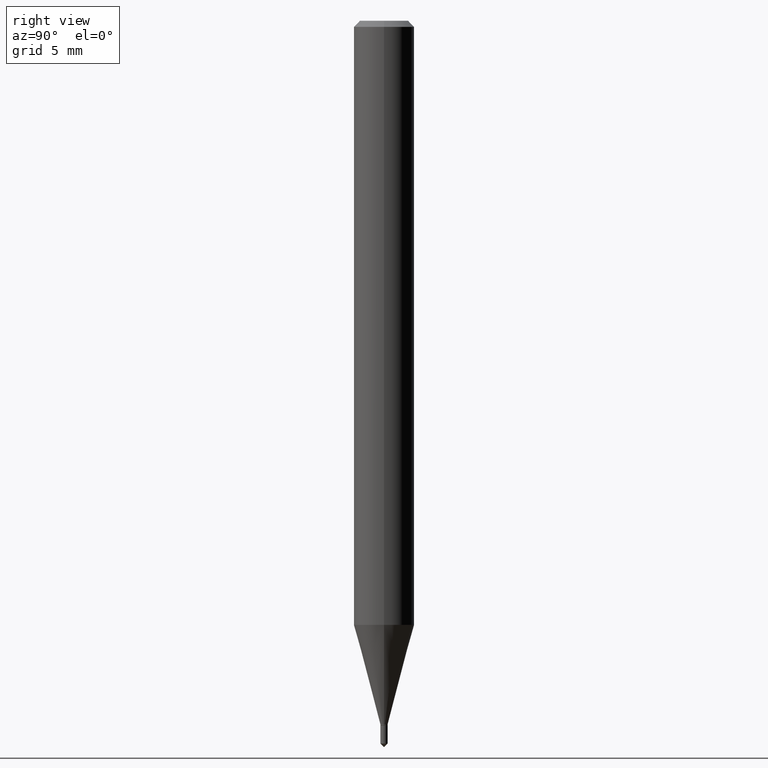
[diagram: clean part render]
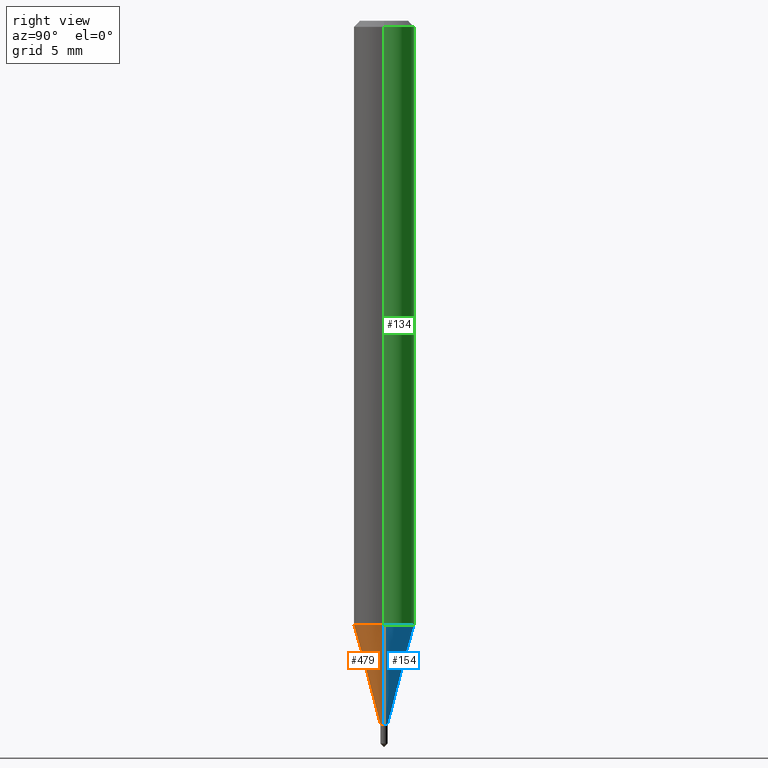
[diagram: same view with three faces highlighted in distinct colors, each labeled with its STEP entity id]
A machine part, right view with three faces highlighted in distinct colors.
Their STEP definitions:

[orange] entity #479 — the highlighted conical surface has half-angle 15 deg.
#7 = FACE_OUTER_BOUND ( 'NONE', #191, .T. ) ;
#36 = ORIENTED_EDGE ( 'NONE', *, *, #216, .F. ) ;
#48 = CARTESIAN_POINT ( 'NONE',  ( 3.552532534745149305E-29, -5.072074940937439206E-15, -1.452700000000000324 ) ) ;
#51 = AXIS2_PLACEMENT_3D ( 'NONE', #82, #458, #484 ) ;
#52 = DIRECTION ( 'NONE',  ( -2.445468806185136597E-29, 3.491481338843145583E-15, 1.000000000000000000 ) ) ;
#57 = CONICAL_SURFACE ( 'NONE', #361, 0.007499999999999998855, 0.2617993877991500740 ) ;
#79 = EDGE_CURVE ( 'NONE', #285, #263, #235, .T. ) ;
#82 = CARTESIAN_POINT ( 'NONE',  ( 3.050568773929722656E-29, -4.355403724674171112E-15, -1.247437205583711961 ) ) ;
#85 = CARTESIAN_POINT ( 'NONE',  ( -0.007499999999999998855, -5.021926568960390746E-15, -1.452700000000000324 ) ) ;
#109 = ORIENTED_EDGE ( 'NONE', *, *, #215, .T. ) ;
#155 = LINE ( 'NONE', #157, #290 ) ;
#157 = CARTESIAN_POINT ( 'NONE',  ( 0.007499999999999998855, -5.124447161020085891E-15, -1.452700000000000324 ) ) ;
#159 = DIRECTION ( 'NONE',  ( -2.445468806185136597E-29, 3.491481338843145583E-15, 1.000000000000000000 ) ) ;
#189 = CARTESIAN_POINT ( 'NONE',  ( -0.06250000000000016653, -3.911314514824107707E-15, -1.247437205583711961 ) ) ;
#191 = EDGE_LOOP ( 'NONE', ( #36, #109, #483, #343 ) ) ;
#195 = DIRECTION ( 'NONE',  ( 1.000000000000000000, -6.982962677686269077E-15, 0.000000000000000000 ) ) ;
#196 = CIRCLE ( 'NONE', #211, 0.007499999999999998855 ) ;
#200 = LINE ( 'NONE', #422, #415 ) ;
#211 = AXIS2_PLACEMENT_3D ( 'NONE', #48, #52, #195 ) ;
#215 = EDGE_CURVE ( 'NONE', #373, #274, #196, .T. ) ;
#216 = EDGE_CURVE ( 'NONE', #373, #285, #200, .T. ) ;
#235 = CIRCLE ( 'NONE', #51, 0.06250000000000016653 ) ;
#263 = VERTEX_POINT ( 'NONE', #388 ) ;
#274 = VERTEX_POINT ( 'NONE', #349 ) ;
#285 = VERTEX_POINT ( 'NONE', #189 ) ;
#290 = VECTOR ( 'NONE', #334, 39.37007874015747433 ) ;
#334 = DIRECTION ( 'NONE',  ( 0.2588190451025213501, 1.565188264969621968E-15, 0.9659258262890682012 ) ) ;
#339 = DIRECTION ( 'NONE',  ( -0.2588190451025213501, 5.211531920934551042E-15, 0.9659258262890682012 ) ) ;
#343 = ORIENTED_EDGE ( 'NONE', *, *, #79, .F. ) ;
#349 = CARTESIAN_POINT ( 'NONE',  ( 0.007499999999999998855, -5.124447161020085891E-15, -1.452700000000000324 ) ) ;
#361 = AXIS2_PLACEMENT_3D ( 'NONE', #449, #159, #418 ) ;
#373 = VERTEX_POINT ( 'NONE', #85 ) ;
#388 = CARTESIAN_POINT ( 'NONE',  ( 0.06250000000000016653, -4.791838892029564359E-15, -1.247437205583711961 ) ) ;
#415 = VECTOR ( 'NONE', #339, 39.37007874015747433 ) ;
#418 = DIRECTION ( 'NONE',  ( 1.000000000000000000, -6.982962677686269077E-15, 0.000000000000000000 ) ) ;
#422 = CARTESIAN_POINT ( 'NONE',  ( -0.007499999999999998855, -5.018784235755432039E-15, -1.452700000000000324 ) ) ;
#449 = CARTESIAN_POINT ( 'NONE',  ( 3.552532534745149305E-29, -5.072074940937439206E-15, -1.452700000000000324 ) ) ;
#458 = DIRECTION ( 'NONE',  ( -2.445468806185136597E-29, 3.491481338843145583E-15, 1.000000000000000000 ) ) ;
#470 = EDGE_CURVE ( 'NONE', #274, #263, #155, .T. ) ;
#479 = ADVANCED_FACE ( 'NONE', ( #7 ), #57, .T. ) ;
#483 = ORIENTED_EDGE ( 'NONE', *, *, #470, .T. ) ;
#484 = DIRECTION ( 'NONE',  ( 1.000000000000000000, -6.982962677686259611E-15, 0.000000000000000000 ) ) ;

[blue] entity #154 — the highlighted conical surface has half-angle 15 deg.
#15 = CARTESIAN_POINT ( 'NONE',  ( 3.552532534745149305E-29, -5.072074940937439206E-15, -1.452700000000000324 ) ) ;
#42 = FACE_OUTER_BOUND ( 'NONE', #151, .T. ) ;
#65 = DIRECTION ( 'NONE',  ( 1.000000000000000000, -6.982962677686269077E-15, 0.000000000000000000 ) ) ;
#85 = CARTESIAN_POINT ( 'NONE',  ( -0.007499999999999998855, -5.021926568960390746E-15, -1.452700000000000324 ) ) ;
#91 = AXIS2_PLACEMENT_3D ( 'NONE', #15, #283, #65 ) ;
#104 = AXIS2_PLACEMENT_3D ( 'NONE', #319, #447, #481 ) ;
#123 = ORIENTED_EDGE ( 'NONE', *, *, #470, .F. ) ;
#127 = EDGE_CURVE ( 'NONE', #274, #373, #277, .T. ) ;
#151 = EDGE_LOOP ( 'NONE', ( #450, #248, #420, #123 ) ) ;
#154 = ADVANCED_FACE ( 'NONE', ( #42 ), #486, .T. ) ;
#155 = LINE ( 'NONE', #157, #290 ) ;
#157 = CARTESIAN_POINT ( 'NONE',  ( 0.007499999999999998855, -5.124447161020085891E-15, -1.452700000000000324 ) ) ;
#189 = CARTESIAN_POINT ( 'NONE',  ( -0.06250000000000016653, -3.911314514824107707E-15, -1.247437205583711961 ) ) ;
#200 = LINE ( 'NONE', #422, #415 ) ;
#216 = EDGE_CURVE ( 'NONE', #373, #285, #200, .T. ) ;
#248 = ORIENTED_EDGE ( 'NONE', *, *, #216, .T. ) ;
#251 = DIRECTION ( 'NONE',  ( -2.445468806185136597E-29, 3.491481338843145583E-15, 1.000000000000000000 ) ) ;
#263 = VERTEX_POINT ( 'NONE', #388 ) ;
#272 = CIRCLE ( 'NONE', #312, 0.06250000000000016653 ) ;
#274 = VERTEX_POINT ( 'NONE', #349 ) ;
#277 = CIRCLE ( 'NONE', #91, 0.007499999999999998855 ) ;
#278 = CARTESIAN_POINT ( 'NONE',  ( 3.050568773929722656E-29, -4.355403724674171112E-15, -1.247437205583711961 ) ) ;
#283 = DIRECTION ( 'NONE',  ( -2.445468806185136597E-29, 3.491481338843145583E-15, 1.000000000000000000 ) ) ;
#285 = VERTEX_POINT ( 'NONE', #189 ) ;
#290 = VECTOR ( 'NONE', #334, 39.37007874015747433 ) ;
#312 = AXIS2_PLACEMENT_3D ( 'NONE', #278, #251, #442 ) ;
#319 = CARTESIAN_POINT ( 'NONE',  ( 3.552532534745149305E-29, -5.072074940937439206E-15, -1.452700000000000324 ) ) ;
#334 = DIRECTION ( 'NONE',  ( 0.2588190451025213501, 1.565188264969621968E-15, 0.9659258262890682012 ) ) ;
#339 = DIRECTION ( 'NONE',  ( -0.2588190451025213501, 5.211531920934551042E-15, 0.9659258262890682012 ) ) ;
#349 = CARTESIAN_POINT ( 'NONE',  ( 0.007499999999999998855, -5.124447161020085891E-15, -1.452700000000000324 ) ) ;
#373 = VERTEX_POINT ( 'NONE', #85 ) ;
#388 = CARTESIAN_POINT ( 'NONE',  ( 0.06250000000000016653, -4.791838892029564359E-15, -1.247437205583711961 ) ) ;
#411 = EDGE_CURVE ( 'NONE', #263, #285, #272, .T. ) ;
#415 = VECTOR ( 'NONE', #339, 39.37007874015747433 ) ;
#420 = ORIENTED_EDGE ( 'NONE', *, *, #411, .F. ) ;
#422 = CARTESIAN_POINT ( 'NONE',  ( -0.007499999999999998855, -5.018784235755432039E-15, -1.452700000000000324 ) ) ;
#442 = DIRECTION ( 'NONE',  ( 1.000000000000000000, -6.982962677686259611E-15, 0.000000000000000000 ) ) ;
#447 = DIRECTION ( 'NONE',  ( -2.445468806185136597E-29, 3.491481338843145583E-15, 1.000000000000000000 ) ) ;
#450 = ORIENTED_EDGE ( 'NONE', *, *, #127, .T. ) ;
#470 = EDGE_CURVE ( 'NONE', #274, #263, #155, .T. ) ;
#481 = DIRECTION ( 'NONE',  ( 1.000000000000000000, -6.982962677686269077E-15, 0.000000000000000000 ) ) ;
#486 = CONICAL_SURFACE ( 'NONE', #104, 0.007499999999999998855, 0.2617993877991500740 ) ;

[green] entity #134 — the highlighted cylindrical surface (edge-blend (fillet) strip) has radius 1.5875 mm, axis along (-0, 0, 1).
#5 = VECTOR ( 'NONE', #363, 39.37007874015748143 ) ;
#25 = EDGE_CURVE ( 'NONE', #285, #354, #362, .T. ) ;
#26 = DIRECTION ( 'NONE',  ( 1.000000000000000000, -6.982962677686266711E-15, 4.876176775795935793E-29 ) ) ;
#37 = ORIENTED_EDGE ( 'NONE', *, *, #25, .T. ) ;
#76 = EDGE_LOOP ( 'NONE', ( #461, #37, #311, #392 ) ) ;
#93 = AXIS2_PLACEMENT_3D ( 'NONE', #462, #313, #309 ) ;
#118 = VERTEX_POINT ( 'NONE', #138 ) ;
#131 = CARTESIAN_POINT ( 'NONE',  ( -0.06250000000000000000, -1.755434410854790748E-15, -0.01250000000000008396 ) ) ;
#134 = ADVANCED_FACE ( 'NONE', ( #178 ), #444, .T. ) ;
#138 = CARTESIAN_POINT ( 'NONE',  ( 0.06250000000000000000, -4.800786840909313294E-16, -0.01250000000000008396 ) ) ;
#178 = FACE_OUTER_BOUND ( 'NONE', #76, .T. ) ;
#189 = CARTESIAN_POINT ( 'NONE',  ( -0.06250000000000016653, -3.911314514824107707E-15, -1.247437205583711961 ) ) ;
#201 = CARTESIAN_POINT ( 'NONE',  ( 0.06250000000000008327, -4.364351673553922611E-16, 3.047610484872464074E-30 ) ) ;
#204 = EDGE_CURVE ( 'NONE', #118, #354, #325, .T. ) ;
#210 = VECTOR ( 'NONE', #436, 39.37007874015748143 ) ;
#250 = CARTESIAN_POINT ( 'NONE',  ( 0.000000000000000000, 0.000000000000000000, 0.000000000000000000 ) ) ;
#251 = DIRECTION ( 'NONE',  ( -2.445468806185136597E-29, 3.491481338843145583E-15, 1.000000000000000000 ) ) ;
#263 = VERTEX_POINT ( 'NONE', #388 ) ;
#272 = CIRCLE ( 'NONE', #312, 0.06250000000000016653 ) ;
#278 = CARTESIAN_POINT ( 'NONE',  ( 3.050568773929722656E-29, -4.355403724674171112E-15, -1.247437205583711961 ) ) ;
#285 = VERTEX_POINT ( 'NONE', #189 ) ;
#309 = DIRECTION ( 'NONE',  ( 1.000000000000000000, -6.982962677686266711E-15, 0.000000000000000000 ) ) ;
#311 = ORIENTED_EDGE ( 'NONE', *, *, #204, .F. ) ;
#312 = AXIS2_PLACEMENT_3D ( 'NONE', #278, #251, #442 ) ;
#313 = DIRECTION ( 'NONE',  ( -2.445468806185136597E-29, 3.491481338843145583E-15, 1.000000000000000000 ) ) ;
#325 = CIRCLE ( 'NONE', #93, 0.06250000000000000000 ) ;
#352 = LINE ( 'NONE', #201, #5 ) ;
#354 = VERTEX_POINT ( 'NONE', #131 ) ;
#359 = CARTESIAN_POINT ( 'NONE',  ( -0.06250000000000008327, 4.440892098500632078E-16, -3.074334431409319967E-30 ) ) ;
#362 = LINE ( 'NONE', #359, #210 ) ;
#363 = DIRECTION ( 'NONE',  ( -2.445468806185136877E-29, 3.491481338843145188E-15, 1.000000000000000000 ) ) ;
#380 = EDGE_CURVE ( 'NONE', #263, #118, #352, .T. ) ;
#388 = CARTESIAN_POINT ( 'NONE',  ( 0.06250000000000016653, -4.791838892029564359E-15, -1.247437205583711961 ) ) ;
#392 = ORIENTED_EDGE ( 'NONE', *, *, #380, .F. ) ;
#402 = AXIS2_PLACEMENT_3D ( 'NONE', #250, #440, #26 ) ;
#411 = EDGE_CURVE ( 'NONE', #263, #285, #272, .T. ) ;
#436 = DIRECTION ( 'NONE',  ( -2.445468806185136877E-29, 3.491481338843145188E-15, 1.000000000000000000 ) ) ;
#440 = DIRECTION ( 'NONE',  ( -2.445468806185136597E-29, 3.491481338843145583E-15, 1.000000000000000000 ) ) ;
#442 = DIRECTION ( 'NONE',  ( 1.000000000000000000, -6.982962677686259611E-15, 0.000000000000000000 ) ) ;
#444 = CYLINDRICAL_SURFACE ( 'NONE', #402, 0.06250000000000008327 ) ;
#461 = ORIENTED_EDGE ( 'NONE', *, *, #411, .T. ) ;
#462 = CARTESIAN_POINT ( 'NONE',  ( 3.056836007731441415E-31, -4.364351673553961684E-17, -0.01250000000000008396 ) ) ;